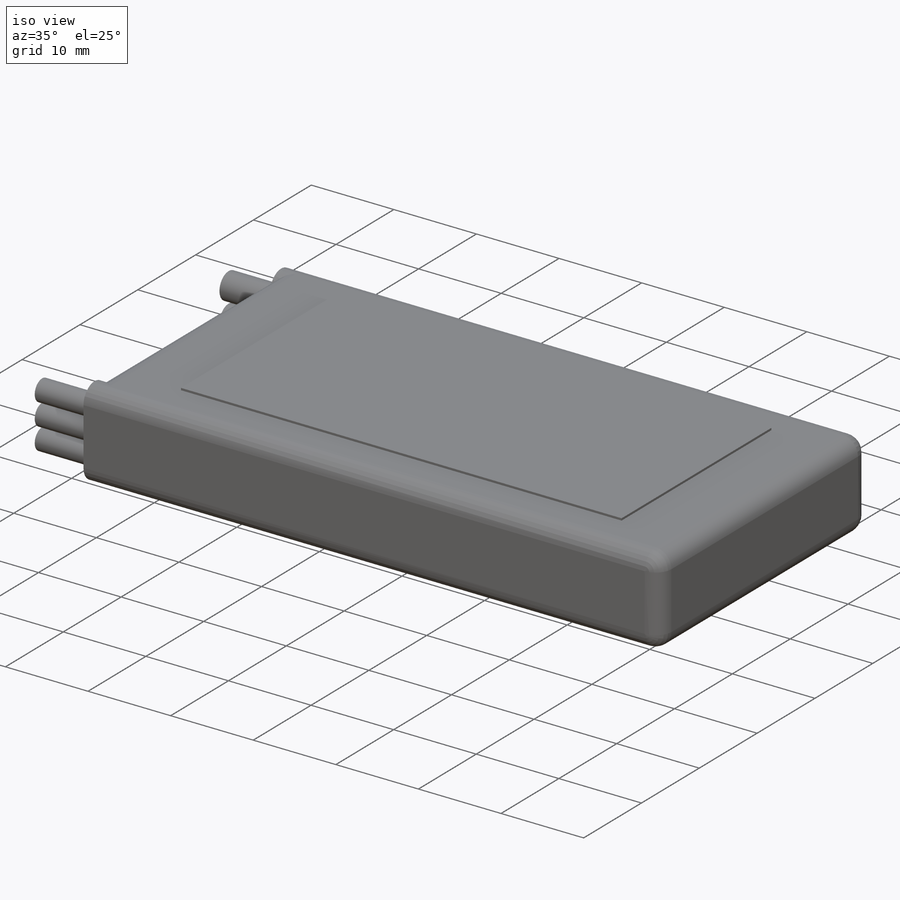
[diagram: iso view]
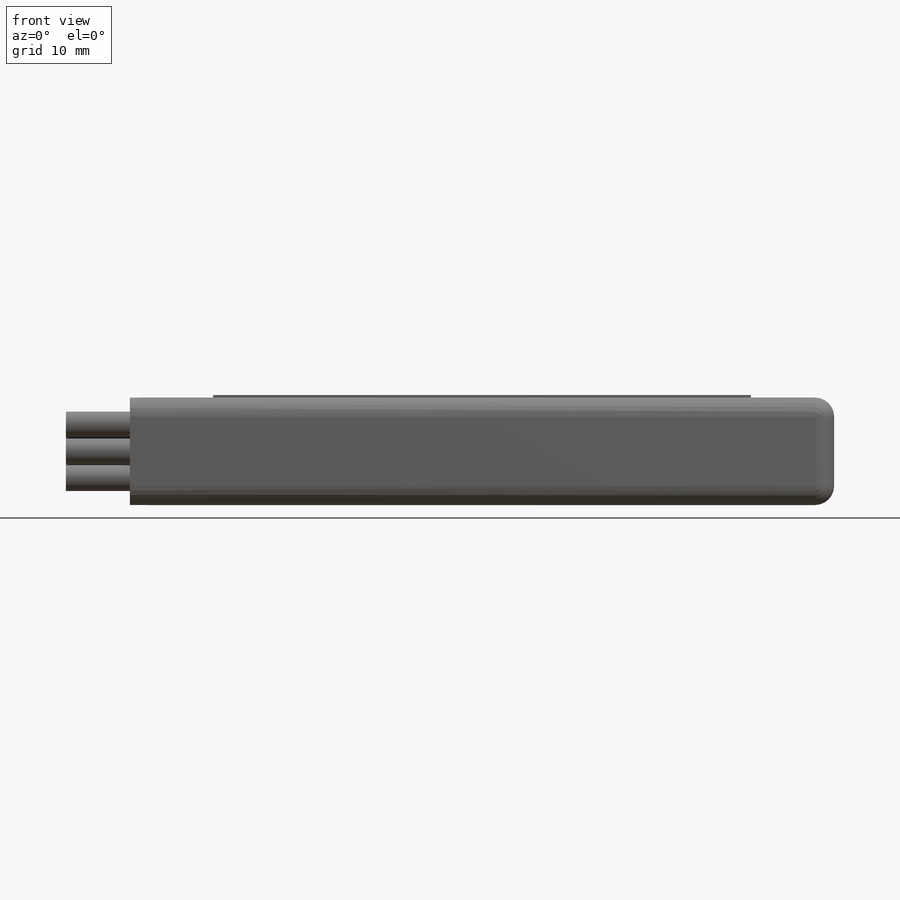
[diagram: front view]
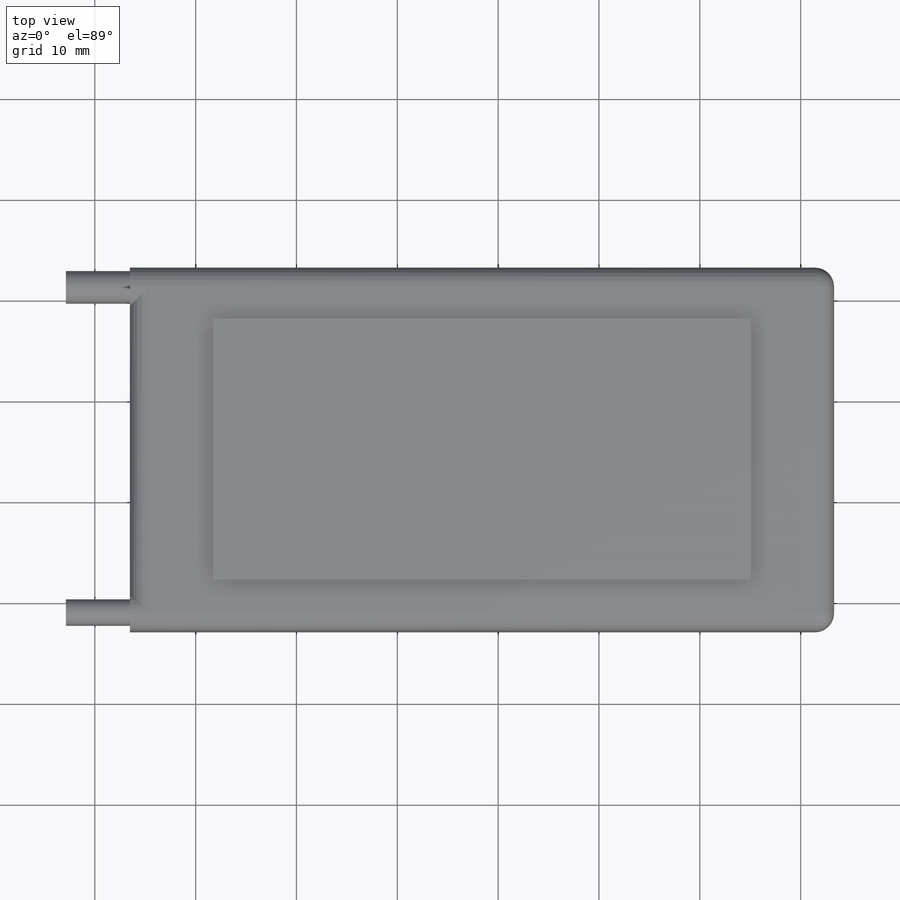
[diagram: top view]
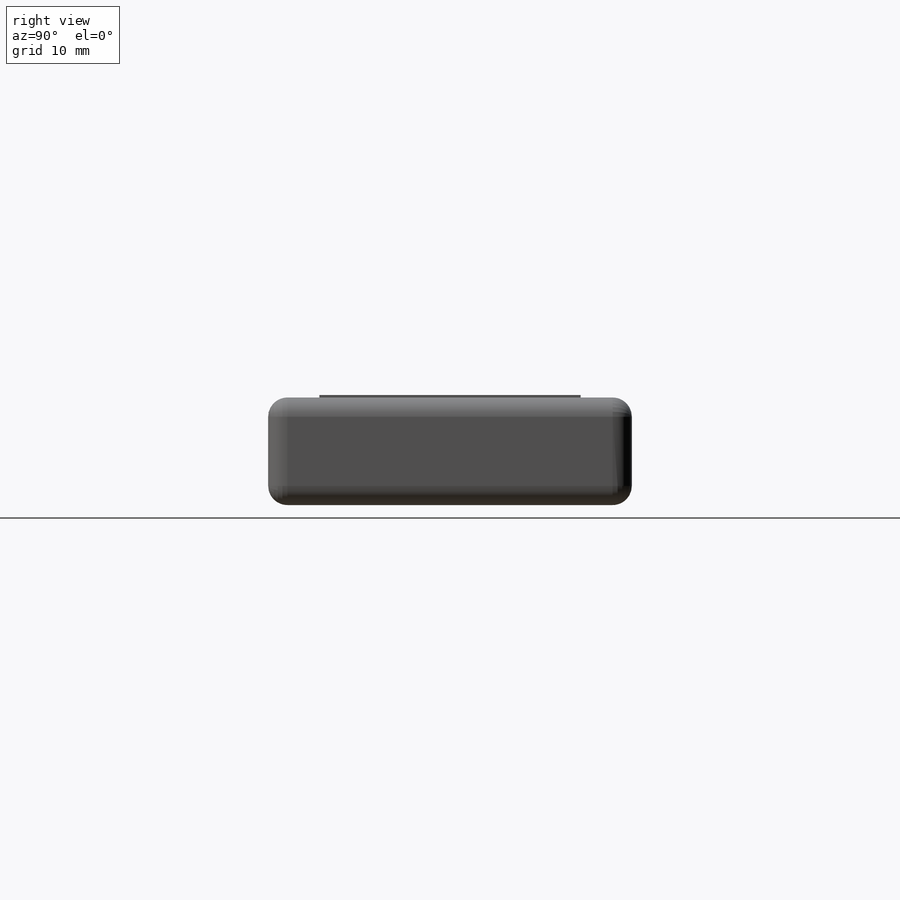
[diagram: right view]
SOLIDWORKS PART (.sldprt)
format: sldprt  version: not decoded by parser v0  size: 238,592 bytes
history: native  units: mm
features: sketch x4, extrude x4, material x1, fillet x1 (+12 scaffold rows collapsed)
feature tree (22):
  scaffold x12  (default folders/planes/origin — collapsed)
  material  "Material <not specified>"
  sketch  "Sketch1"  dims[D1=69.85mm D2=36.068mm]
  extrude  "Battery"  Depth=10.668mm
  fillet  "Fillet"  Radius=1.905mm
  sketch  "Sketch2"
  extrude  "Wire Boss"  Depth=5.08mm
  sketch  "Sketch3"  dims[D1=2.54mm D2=3.175mm]
  extrude  "Wires"  Depth=6.35mm
  sketch  "Sketch4"  dims[D1=3.175mm D2=3.175mm D3=6.35mm D4=6.35mm]
  extrude  "Label"  Depth=0.254mm
decode coverage: 8 of 9 modeling features carry decoded parameters
note: suppression state not decoded; provenance and decode notes live in map.json
